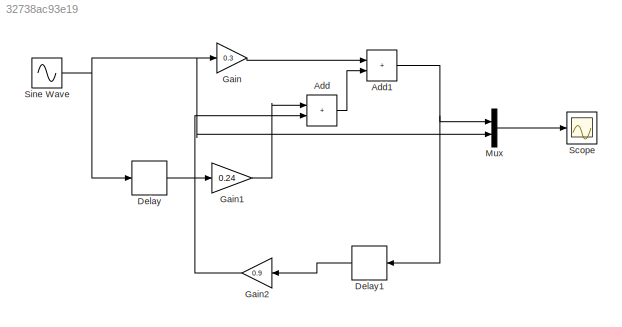
MODEL slx_32738ac93e19
KIND model
CONFIG AbsTol = auto
CONFIG EnableMultiTasking = off
CONFIG FixedStep = auto
CONFIG MaxStep = auto
CONFIG MinStep = auto
CONFIG RelTol = 1e-3
CONFIG SampleTimeConstraint = Unconstrained
CONFIG SolverName = VariableStepAuto
CONFIG StartTime = 0.0
CONFIG StopTime = 10.0
BLOCK [Sum] Add
  IconShape = rectangular
BLOCK [Sum] Add1
  IconShape = rectangular
BLOCK [Delay] Delay
  DelayLength = 1
  InitialCondition = 0
  InputPortMap = u0
BLOCK [Delay] Delay1
  DelayLength = 1
  InitialCondition = 0
  InputPortMap = u0
  NameLocation = top
BLOCK [Gain] Gain
  Gain = 0.3
BLOCK [Gain] Gain1
  Gain = 0.24
BLOCK [Gain] Gain2
  Gain = 0.9
  NameLocation = top
BLOCK [Mux] Mux
  DisplayOption = bar
  Inputs = 2
BLOCK [Scope] Scope
  Floating = off
  NumInputPorts = 1
  ScopeSpecificationString = Simulink.scopes.TimeScopeBlockCfg('CurrentConfiguration', extmgr.ConfigurationSet(extmgr.Configuration('Core','General UI',true),extmgr.Configuration('Core','Source UI',true),extmgr.Configuration('Sources','WiredSimulink',true),extmgr.Configuration('Visuals','Time Domain',true,'SerializedDisplays',{struct('MinYLimReal','-3.08839','MaxYLimReal','3.75109','YLabelReal','','MinYLimMag','0.00000','MaxY...<+1425ch>
BLOCK [Sin] Sine Wave
  SampleTime = 0
NET Add1:1 -> Delay1:1, Mux:1
LINE Add:1 -> Add1:2
LINE Delay1:1 -> Gain2:1
LINE Delay:1 -> Gain1:1
LINE Gain1:1 -> Add:1
LINE Gain2:1 -> Add:2
LINE Gain:1 -> Add1:1
LINE Mux:1 -> Scope:1
NET Sine Wave:1 -> Delay:1, Gain:1, Mux:2
note: NET lines group one-source signal fan-out (src -> all destinations, sorted); 1:1 wires keep LINE
